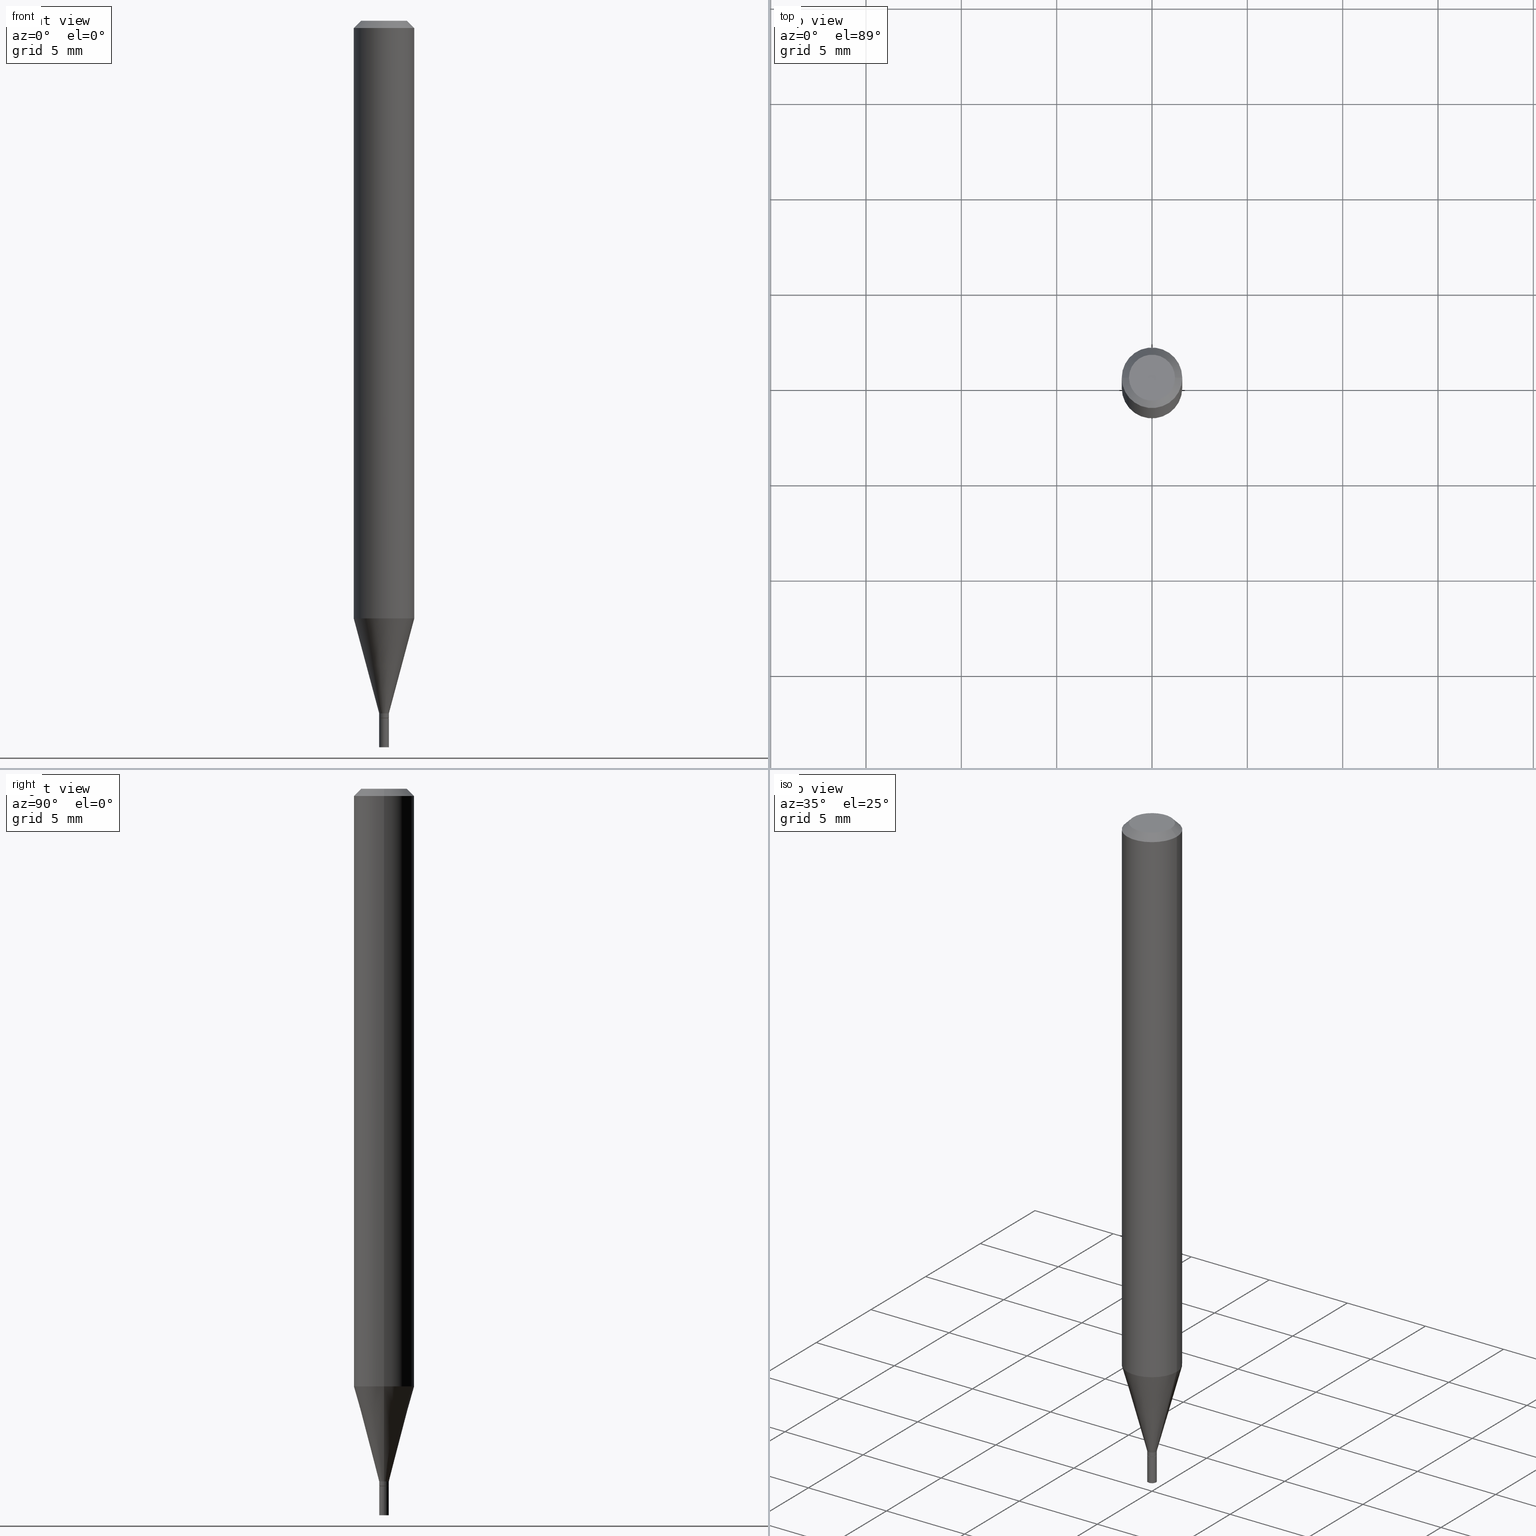
[diagram: canonical four-view strip — front | top / right | iso, engineering-drawing reading convention]
A machine part, canonical four-view strip (front | top / right | iso — engineering-drawing reading convention). The complete STEP part file that produces these views, byte-faithful:
ISO-10303-21;
HEADER;
FILE_DESCRIPTION (( 'STEP AP203' ),
    '1' );
FILE_NAME ('00826.STEP',
    '2024-03-19T22:33:39',
    ( '' ),
    ( '' ),
    'SwSTEP 2.0',
    'SolidWorks 2023',
    '' );
FILE_SCHEMA (( 'CONFIG_CONTROL_DESIGN' ));
ENDSEC;

DATA;
#1 = VERTEX_POINT ( 'NONE', #126 ) ;
#2 = ORIENTED_EDGE ( 'NONE', *, *, #125, .F. ) ;
#3 = CIRCLE ( 'NONE', #71, 0.009999999999999918676 ) ;
#4 = ORIENTED_EDGE ( 'NONE', *, *, #332, .T. ) ;
#5 = VERTEX_POINT ( 'NONE', #404 ) ;
#6 = CARTESIAN_POINT ( 'NONE',  ( 0.06250000000000000000, -4.364351673553916694E-16, 3.047610484872459871E-30 ) ) ;
#7 = ADVANCED_FACE ( 'NONE', ( #41 ), #15, .T. ) ;
#8 = EDGE_LOOP ( 'NONE', ( #123, #440 ) ) ;
#9 = CLOSED_SHELL ( 'NONE', ( #226, #133, #284, #25, #170, #396, #317, #293, #145, #108, #389, #69 ) ) ;
#10 = PRODUCT ( '00826', '00826', '', ( #357 ) ) ;
#11 = AXIS2_PLACEMENT_3D ( 'NONE', #422, #213, #353 ) ;
#12 = LINE ( 'NONE', #6, #167 ) ;
#13 = DIRECTION ( 'NONE',  ( -2.445468806185136597E-29, 3.491481338843145583E-15, 1.000000000000000000 ) ) ;
#14 = FACE_OUTER_BOUND ( 'NONE', #295, .T. ) ;
#15 = CYLINDRICAL_SURFACE ( 'NONE', #283, 0.01000000000000000021 ) ;
#16 = DIRECTION ( 'NONE',  ( -2.445468806185136597E-29, 3.491481338843145583E-15, 1.000000000000000000 ) ) ;
#17 = CIRCLE ( 'NONE', #337, 0.06250000000000000000 ) ;
#18 = VECTOR ( 'NONE', #376, 39.37007874015748143 ) ;
#19 = CALENDAR_DATE ( 2024, 19, 3 ) ;
#20 = CARTESIAN_POINT ( 'NONE',  ( 0.06250000000000000000, -4.888073874380388472E-16, -0.01499999999999999944 ) ) ;
#21 = CC_DESIGN_PERSON_AND_ORGANIZATION_ASSIGNMENT ( #127, #429, ( #398 ) ) ;
#22 = CIRCLE ( 'NONE', #223, 0.06250000000000000000 ) ;
#23 = CONICAL_SURFACE ( 'NONE', #304, 0.009999999999999918676, 0.2617993877991502405 ) ;
#24 = DIRECTION ( 'NONE',  ( 1.000000000000000000, -6.982962677686265922E-15, 4.876176775795935793E-29 ) ) ;
#25 = ADVANCED_FACE ( 'NONE', ( #345 ), #448, .T. ) ;
#26 = PERSON_AND_ORGANIZATION ( #276, #96 ) ;
#27 = DIRECTION ( 'NONE',  ( 1.000000000000000000, -6.982962677686292743E-15, 0.000000000000000000 ) ) ;
#28 = CARTESIAN_POINT ( 'NONE',  ( 3.521475080906597305E-29, -5.027733127934130649E-15, -1.440000000000000169 ) ) ;
#29 = DIRECTION ( 'NONE',  ( 2.438088387897960049E-29, -3.491481338843145188E-15, -1.000000000000000000 ) ) ;
#30 = APPROVAL_ROLE ( '' ) ;
#31 = VERTEX_POINT ( 'NONE', #442 ) ;
#32 = AXIS2_PLACEMENT_3D ( 'NONE', #55, #212, #136 ) ;
#33 = APPROVAL_STATUS ( 'not_yet_approved' ) ;
#34 = CIRCLE ( 'NONE', #232, 0.06250000000000000000 ) ;
#35 =( GEOMETRIC_REPRESENTATION_CONTEXT ( 3 ) GLOBAL_UNCERTAINTY_ASSIGNED_CONTEXT ( ( #225 ) ) GLOBAL_UNIT_ASSIGNED_CONTEXT ( ( #175, #247, #425 ) ) REPRESENTATION_CONTEXT ( 'NONE', 'WORKASPACE' ) );
#36 = EDGE_CURVE ( 'NONE', #443, #68, #17, .T. ) ;
#37 = ORIENTED_EDGE ( 'NONE', *, *, #364, .F. ) ;
#38 = CARTESIAN_POINT ( 'NONE',  ( 3.668203209277705088E-31, -5.237222008264718399E-17, -0.01499999999999999944 ) ) ;
#39 = DIRECTION ( 'NONE',  ( 2.445468806185136597E-29, -3.491481338843145583E-15, -1.000000000000000000 ) ) ;
#40 = EDGE_CURVE ( 'NONE', #45, #1, #378, .T. ) ;
#41 = FACE_OUTER_BOUND ( 'NONE', #374, .T. ) ;
#42 = VECTOR ( 'NONE', #413, 39.37007874015748143 ) ;
#43 = PRODUCT_DEFINITION_SHAPE ( 'NONE', 'NONE',  #398 ) ;
#44 = LOCAL_TIME ( 18, 33, 39.00000000000000000, #111 ) ;
#45 = VERTEX_POINT ( 'NONE', #49 ) ;
#46 = CARTESIAN_POINT ( 'NONE',  ( 3.017873166611840083E-29, -4.308723062658035041E-15, -1.234067332602634348 ) ) ;
#47 = CARTESIAN_POINT ( 'NONE',  ( 3.668203209277705088E-31, -5.237222008264718399E-17, -0.01499999999999999944 ) ) ;
#48 = CARTESIAN_POINT ( 'NONE',  ( -0.01000000000000000021, 7.105427357601002007E-17, -4.918935090254906272E-31 ) ) ;
#49 = CARTESIAN_POINT ( 'NONE',  ( 0.009999999999999918676, -5.062647941322559931E-15, -1.429999999999999938 ) ) ;
#50 = DIRECTION ( 'NONE',  ( -2.445468806185136597E-29, 3.491481338843145583E-15, 1.000000000000000000 ) ) ;
#51 = CIRCLE ( 'NONE', #152, 0.009999999999999923880 ) ;
#52 = APPROVAL_PERSON_ORGANIZATION ( #26, #74, #178 ) ;
#53 = DIRECTION ( 'NONE',  ( -2.438088387897960049E-29, 3.491481338843145188E-15, 1.000000000000000000 ) ) ;
#54 = CYLINDRICAL_SURFACE ( 'NONE', #202, 0.01000000000000000021 ) ;
#55 = CARTESIAN_POINT ( 'NONE',  ( 1.124489007074299301E-44, -1.605472281635369412E-30, -4.598255370218649310E-16 ) ) ;
#56 = DIRECTION ( 'NONE',  ( -2.445468806185136597E-29, 3.491481338843145583E-15, 1.000000000000000000 ) ) ;
#57 =( LENGTH_UNIT ( ) NAMED_UNIT ( * ) SI_UNIT ( $, .METRE. ) );
#58 = CARTESIAN_POINT ( 'NONE',  ( 0.009999999999999920411, -6.982962677686211490E-17, 4.876176775795897432E-31 ) ) ;
#59 = EDGE_CURVE ( 'NONE', #120, #31, #51, .T. ) ;
#60 = AXIS2_PLACEMENT_3D ( 'NONE', #65, #179, #358 ) ;
#61 = DIRECTION ( 'NONE',  ( 1.000000000000000000, -6.982962677686292743E-15, 0.000000000000000000 ) ) ;
#62 = DIRECTION ( 'NONE',  ( 2.438088387897960049E-29, -3.491481338843145188E-15, -1.000000000000000000 ) ) ;
#63 = CC_DESIGN_DATE_AND_TIME_ASSIGNMENT ( #255, #263, ( #260 ) ) ;
#64 = COORDINATED_UNIVERSAL_TIME_OFFSET ( 5, 0, .BEHIND. ) ;
#65 = CARTESIAN_POINT ( 'NONE',  ( 3.521475080906597305E-29, -5.027733127934130649E-15, -1.440000000000000169 ) ) ;
#66 = DESIGN_CONTEXT ( 'detailed design', #437, 'design' ) ;
#67 = APPROVAL_ROLE ( '' ) ;
#68 = VERTEX_POINT ( 'NONE', #20 ) ;
#69 = ADVANCED_FACE ( 'NONE', ( #171 ), #176, .T. ) ;
#70 = CONICAL_SURFACE ( 'NONE', #122, 0.009499999999999999764, 0.7853981633974728149 ) ;
#71 = AXIS2_PLACEMENT_3D ( 'NONE', #198, #444, #401 ) ;
#72 = PERSON_AND_ORGANIZATION ( #276, #96 ) ;
#73 = ORIENTED_EDGE ( 'NONE', *, *, #231, .T. ) ;
#74 = APPROVAL ( #239, 'UNSPECIFIED' ) ;
#75 = DATE_AND_TIME ( #300, #250 ) ;
#76 = ADVANCED_FACE ( 'NONE', ( #105 ), #217, .F. ) ;
#77 = CONICAL_SURFACE ( 'NONE', #296, 0.06250000000000000000, 0.7853981633974638221 ) ;
#78 = EDGE_LOOP ( 'NONE', ( #155, #2 ) ) ;
#79 = LINE ( 'NONE', #206, #420 ) ;
#80 = DIRECTION ( 'NONE',  ( -2.445468806185136877E-29, 3.491481338843145188E-15, 1.000000000000000000 ) ) ;
#81 = ORIENTED_EDGE ( 'NONE', *, *, #92, .F. ) ;
#82 = LINE ( 'NONE', #266, #18 ) ;
#83 = CC_DESIGN_PERSON_AND_ORGANIZATION_ASSIGNMENT ( #322, #456, ( #10 ) ) ;
#84 = CIRCLE ( 'NONE', #32, 0.04749999999999999362 ) ;
#85 = ORIENTED_EDGE ( 'NONE', *, *, #391, .T. ) ;
#86 = LINE ( 'NONE', #228, #421 ) ;
#87 = CARTESIAN_POINT ( 'NONE',  ( 3.497020392844745759E-29, -4.992818314545698211E-15, -1.429999999999999938 ) ) ;
#88 = ORIENTED_EDGE ( 'NONE', *, *, #36, .F. ) ;
#89 = ORIENTED_EDGE ( 'NONE', *, *, #464, .F. ) ;
#90 = CARTESIAN_POINT ( 'NONE',  ( 3.668203209277705088E-31, -5.237222008264718399E-17, -0.01499999999999999944 ) ) ;
#91 = CARTESIAN_POINT ( 'NONE',  ( 3.520252346503504503E-29, -5.025987387264709145E-15, -1.439500000000000224 ) ) ;
#92 = EDGE_CURVE ( 'NONE', #5, #265, #328, .T. ) ;
#93 = DIRECTION ( 'NONE',  ( 0.7071067811865647812, -2.468850131082438104E-15, 0.7071067811865301422 ) ) ;
#94 = CARTESIAN_POINT ( 'NONE',  ( 0.009999999999999918676, -5.062647941322559931E-15, -1.429999999999999938 ) ) ;
#95 = AXIS2_PLACEMENT_3D ( 'NONE', #38, #39, #230 ) ;
#96 = ORGANIZATION ( 'UNSPECIFIED', 'UNSPECIFIED', '' ) ;
#97 = LINE ( 'NONE', #245, #135 ) ;
#98 = DIRECTION ( 'NONE',  ( -2.445468806185136597E-29, 3.491481338843145583E-15, 1.000000000000000000 ) ) ;
#99 = EDGE_CURVE ( 'NONE', #416, #45, #297, .T. ) ;
#100 = CARTESIAN_POINT ( 'NONE',  ( 0.000000000000000000, 0.000000000000000000, 0.000000000000000000 ) ) ;
#101 = ORIENTED_EDGE ( 'NONE', *, *, #369, .T. ) ;
#102 = CARTESIAN_POINT ( 'NONE',  ( -0.06249999999999999306, -3.864633852807972425E-15, -1.234067332602634348 ) ) ;
#103 = AXIS2_PLACEMENT_3D ( 'NONE', #100, #139, #146 ) ;
#104 = CC_DESIGN_APPROVAL ( #74, ( #398 ) ) ;
#105 = FACE_OUTER_BOUND ( 'NONE', #8, .T. ) ;
#106 = PERSON_AND_ORGANIZATION_ROLE ( 'creator' ) ;
#107 = ORIENTED_EDGE ( 'NONE', *, *, #321, .T. ) ;
#108 = ADVANCED_FACE ( 'NONE', ( #355 ), #173, .F. ) ;
#109 = APPROVAL_DATE_TIME ( #75, #222 ) ;
#110 = VECTOR ( 'NONE', #450, 39.37007874015748143 ) ;
#111 = COORDINATED_UNIVERSAL_TIME_OFFSET ( 5, 0, .BEHIND. ) ;
#112 = ADVANCED_FACE ( 'NONE', ( #320 ), #253, .F. ) ;
#113 = PERSON_AND_ORGANIZATION ( #276, #96 ) ;
#114 = CARTESIAN_POINT ( 'NONE',  ( 0.009499999999999999764, -5.094071273372150151E-15, -1.440000000000000169 ) ) ;
#115 = CONICAL_SURFACE ( 'NONE', #224, 0.009499999999999999764, 0.7853981633974728149 ) ;
#116 = ORIENTED_EDGE ( 'NONE', *, *, #99, .F. ) ;
#117 = DIRECTION ( 'NONE',  ( 1.000000000000000000, -6.982962677686235945E-15, 0.000000000000000000 ) ) ;
#118 = ORIENTED_EDGE ( 'NONE', *, *, #432, .F. ) ;
#119 = CARTESIAN_POINT ( 'NONE',  ( 3.668203209277704895E-29, -5.237222008264718177E-15, -1.500000000000000222 ) ) ;
#120 = VERTEX_POINT ( 'NONE', #424 ) ;
#121 = DIRECTION ( 'NONE',  ( 1.000000000000000000, -6.982962677686266711E-15, 0.000000000000000000 ) ) ;
#122 = AXIS2_PLACEMENT_3D ( 'NONE', #28, #326, #455 ) ;
#123 = ORIENTED_EDGE ( 'NONE', *, *, #92, .T. ) ;
#124 = LINE ( 'NONE', #344, #42 ) ;
#125 = EDGE_CURVE ( 'NONE', #336, #343, #174, .T. ) ;
#126 = CARTESIAN_POINT ( 'NONE',  ( 0.06249999999999999306, -4.745158230013426710E-15, -1.234067332602634348 ) ) ;
#127 = PERSON_AND_ORGANIZATION ( #276, #96 ) ;
#128 = FACE_OUTER_BOUND ( 'NONE', #405, .T. ) ;
#129 = LINE ( 'NONE', #385, #434 ) ;
#130 = LINE ( 'NONE', #58, #399 ) ;
#131 = DIRECTION ( 'NONE',  ( 1.000000000000000000, -6.982962677686235945E-15, 0.000000000000000000 ) ) ;
#132 = ORIENTED_EDGE ( 'NONE', *, *, #269, .F. ) ;
#133 = ADVANCED_FACE ( 'NONE', ( #318 ), #70, .T. ) ;
#134 = VECTOR ( 'NONE', #415, 39.37007874015748143 ) ;
#135 = VECTOR ( 'NONE', #325, 39.37007874015748854 ) ;
#136 = DIRECTION ( 'NONE',  ( 1.000000000000000000, -6.982962677686267499E-15, 4.852736867747366768E-29 ) ) ;
#137 = CARTESIAN_POINT ( 'NONE',  ( 3.584916967085606921E-29, -5.356492647442320375E-15, -1.500000000000000222 ) ) ;
#138 = EDGE_LOOP ( 'NONE', ( #402, #101, #107, #88 ) ) ;
#139 = DIRECTION ( 'NONE',  ( -2.445468806185136597E-29, 3.491481338843145583E-15, 1.000000000000000000 ) ) ;
#140 = LINE ( 'NONE', #457, #110 ) ;
#141 = DIRECTION ( 'NONE',  ( 1.000000000000000000, -6.982962677686265922E-15, 4.876176775795935793E-29 ) ) ;
#142 = AXIS2_PLACEMENT_3D ( 'NONE', #290, #56, #257 ) ;
#143 = ORIENTED_EDGE ( 'NONE', *, *, #281, .T. ) ;
#144 = CIRCLE ( 'NONE', #339, 0.06250000000000000000 ) ;
#145 = ADVANCED_FACE ( 'NONE', ( #285 ), #219, .F. ) ;
#146 = DIRECTION ( 'NONE',  ( 1.000000000000000000, -6.982962677686266711E-15, 4.876176775795936353E-29 ) ) ;
#147 = EDGE_LOOP ( 'NONE', ( #73, #397 ) ) ;
#148 = CC_DESIGN_PERSON_AND_ORGANIZATION_ASSIGNMENT ( #465, #435, ( #188 ) ) ;
#149 = SECURITY_CLASSIFICATION_LEVEL ( 'unclassified' ) ;
#150 = ORIENTED_EDGE ( 'NONE', *, *, #248, .F. ) ;
#151 = EDGE_LOOP ( 'NONE', ( #4, #256, #278, #346 ) ) ;
#152 = AXIS2_PLACEMENT_3D ( 'NONE', #91, #242, #209 ) ;
#153 = CC_DESIGN_SECURITY_CLASSIFICATION ( #260, ( #188 ) ) ;
#154 = APPROVAL_PERSON_ORGANIZATION ( #261, #436, #67 ) ;
#155 = ORIENTED_EDGE ( 'NONE', *, *, #218, .F. ) ;
#156 = CIRCLE ( 'NONE', #249, 0.04749999999999999362 ) ;
#157 = VECTOR ( 'NONE', #210, 39.37007874015748143 ) ;
#158 = EDGE_LOOP ( 'NONE', ( #132, #361, #143, #394 ) ) ;
#159 = ORIENTED_EDGE ( 'NONE', *, *, #464, .T. ) ;
#160 = DIRECTION ( 'NONE',  ( -2.445468806185136597E-29, 3.491481338843145583E-15, 1.000000000000000000 ) ) ;
#161 = ORIENTED_EDGE ( 'NONE', *, *, #306, .F. ) ;
#162 = DIRECTION ( 'NONE',  ( -0.7071067811865584529, 2.468850131082371445E-15, -0.7071067811865365815 ) ) ;
#163 = CARTESIAN_POINT ( 'NONE',  ( 0.000000000000000000, 0.000000000000000000, 0.000000000000000000 ) ) ;
#164 = EDGE_LOOP ( 'NONE', ( #196, #445, #159, #359 ) ) ;
#165 = EDGE_CURVE ( 'NONE', #31, #120, #387, .T. ) ;
#166 = DIRECTION ( 'NONE',  ( 2.445468806185136597E-29, -3.491481338843145583E-15, -1.000000000000000000 ) ) ;
#167 = VECTOR ( 'NONE', #301, 39.37007874015748143 ) ;
#168 = CC_DESIGN_APPROVAL ( #436, ( #260 ) ) ;
#169 = CARTESIAN_POINT ( 'NONE',  ( -0.009999999999999918676, -4.393198946888830277E-15, -1.429999999999999938 ) ) ;
#170 = ADVANCED_FACE ( 'NONE', ( #392 ), #349, .T. ) ;
#171 = FACE_OUTER_BOUND ( 'NONE', #203, .T. ) ;
#172 = DIRECTION ( 'NONE',  ( -2.445468806185136597E-29, 3.491481338843145583E-15, 1.000000000000000000 ) ) ;
#173 = PLANE ( 'NONE',  #426 ) ;
#174 = CIRCLE ( 'NONE', #60, 0.009499999999999999764 ) ;
#175 =( CONVERSION_BASED_UNIT ( 'INCH', #419 ) LENGTH_UNIT ( ) NAMED_UNIT ( #215 ) );
#176 = CYLINDRICAL_SURFACE ( 'NONE', #103, 0.009999999999999920411 ) ;
#177 = ORIENTED_EDGE ( 'NONE', *, *, #382, .F. ) ;
#178 = APPROVAL_ROLE ( '' ) ;
#179 = DIRECTION ( 'NONE',  ( -2.445468806185136597E-29, 3.491481338843145583E-15, 1.000000000000000000 ) ) ;
#180 = MANIFOLD_SOLID_BREP ( 'Body-Move/Copy2[2]', #9 ) ;
#181 = CARTESIAN_POINT ( 'NONE',  ( 3.521475080906597305E-29, -5.027733127934130649E-15, -1.440000000000000169 ) ) ;
#182 = DIRECTION ( 'NONE',  ( -1.000000000000000000, 6.982962677686265922E-15, -4.876176775795935793E-29 ) ) ;
#183 = ORIENTED_EDGE ( 'NONE', *, *, #99, .T. ) ;
#184 = VERTEX_POINT ( 'NONE', #458 ) ;
#185 = AXIS2_PLACEMENT_3D ( 'NONE', #302, #190, #259 ) ;
#186 = APPROVAL_DATE_TIME ( #362, #436 ) ;
#187 = ORIENTED_EDGE ( 'NONE', *, *, #286, .T. ) ;
#188 = PRODUCT_DEFINITION_FORMATION_WITH_SPECIFIED_SOURCE ( 'ANY', '', #10, .NOT_KNOWN. ) ;
#189 = MANIFOLD_SOLID_BREP ( 'Body-Move/Copy2[1]', #393 ) ;
#190 = DIRECTION ( 'NONE',  ( -2.445468806185136597E-29, 3.491481338843145583E-15, 1.000000000000000000 ) ) ;
#191 = EDGE_CURVE ( 'NONE', #265, #5, #439, .T. ) ;
#192 = PERSON_AND_ORGANIZATION ( #276, #96 ) ;
#193 = ORIENTED_EDGE ( 'NONE', *, *, #281, .F. ) ;
#194 = CC_DESIGN_PERSON_AND_ORGANIZATION_ASSIGNMENT ( #113, #294, ( #260 ) ) ;
#195 = DATE_AND_TIME ( #366, #314 ) ;
#196 = ORIENTED_EDGE ( 'NONE', *, *, #391, .F. ) ;
#197 = CARTESIAN_POINT ( 'NONE',  ( -0.04749999999999999362, 3.578768372314203110E-16, -4.598255370218673962E-16 ) ) ;
#198 = CARTESIAN_POINT ( 'NONE',  ( 3.497020392844745759E-29, -4.992818314545698211E-15, -1.429999999999999938 ) ) ;
#199 = ORIENTED_EDGE ( 'NONE', *, *, #191, .F. ) ;
#200 = CARTESIAN_POINT ( 'NONE',  ( 3.017873166611840083E-29, -4.308723062658035041E-15, -1.234067332602634348 ) ) ;
#201 = AXIS2_PLACEMENT_3D ( 'NONE', #352, #62, #384 ) ;
#202 = AXIS2_PLACEMENT_3D ( 'NONE', #381, #172, #279 ) ;
#203 = EDGE_LOOP ( 'NONE', ( #244, #368, #315, #116 ) ) ;
#204 = CARTESIAN_POINT ( 'NONE',  ( 3.521475080906597305E-29, -5.027733127934130649E-15, -1.440000000000000169 ) ) ;
#205 = EDGE_CURVE ( 'NONE', #31, #45, #130, .T. ) ;
#206 = CARTESIAN_POINT ( 'NONE',  ( -0.06250000000000000000, 3.840629472727444916E-16, -0.01499999999999999944 ) ) ;
#207 = DIRECTION ( 'NONE',  ( -2.445468806185136597E-29, 3.491481338843145583E-15, 1.000000000000000000 ) ) ;
#208 = CARTESIAN_POINT ( 'NONE',  ( -0.009999999999999918676, -4.921764040969688918E-15, -1.429999999999999938 ) ) ;
#209 = DIRECTION ( 'NONE',  ( 1.000000000000000000, -6.982962677686289588E-15, 0.000000000000000000 ) ) ;
#210 = DIRECTION ( 'NONE',  ( -0.2588190451025215166, 5.211531920934551042E-15, 0.9659258262890679791 ) ) ;
#211 = DIRECTION ( 'NONE',  ( -2.445468806185136597E-29, 3.491481338843145583E-15, 1.000000000000000000 ) ) ;
#212 = DIRECTION ( 'NONE',  ( -2.445468806185136597E-29, 3.491481338843145583E-15, 1.000000000000000000 ) ) ;
#213 = DIRECTION ( 'NONE',  ( 0.000000000000000000, 0.000000000000000000, 1.000000000000000000 ) ) ;
#214 = AXIS2_PLACEMENT_3D ( 'NONE', #227, #50, #447 ) ;
#215 = DIMENSIONAL_EXPONENTS ( 1.000000000000000000, 0.000000000000000000, 0.000000000000000000, 0.000000000000000000, 0.000000000000000000, 0.000000000000000000, 0.000000000000000000 ) ;
#216 = APPLICATION_PROTOCOL_DEFINITION ( 'international standard', 'config_control_design', 1994, #411 ) ;
#217 = PLANE ( 'NONE',  #201 ) ;
#218 = EDGE_CURVE ( 'NONE', #343, #336, #289, .T. ) ;
#219 = PLANE ( 'NONE',  #375 ) ;
#220 = CALENDAR_DATE ( 2024, 19, 3 ) ;
#221 = EDGE_LOOP ( 'NONE', ( #118, #183, #234, #309 ) ) ;
#222 = APPROVAL ( #33, 'UNSPECIFIED' ) ;
#223 = AXIS2_PLACEMENT_3D ( 'NONE', #200, #160, #310 ) ;
#224 = AXIS2_PLACEMENT_3D ( 'NONE', #204, #377, #264 ) ;
#225 = UNCERTAINTY_MEASURE_WITH_UNIT (LENGTH_MEASURE( 1.000000000000000082E-05 ), #175, 'distance_accuracy_value', 'NONE');
#226 = ADVANCED_FACE ( 'NONE', ( #128 ), #240, .T. ) ;
#227 = CARTESIAN_POINT ( 'NONE',  ( 3.668203209277704895E-29, -5.237222008264718177E-15, -1.500000000000000222 ) ) ;
#228 = CARTESIAN_POINT ( 'NONE',  ( 0.01000000000000000021, -6.982962677686265724E-17, 4.876176775795935968E-31 ) ) ;
#229 = ORIENTED_EDGE ( 'NONE', *, *, #258, .T. ) ;
#230 = DIRECTION ( 'NONE',  ( -1.000000000000000000, 6.982962677686266711E-15, 0.000000000000000000 ) ) ;
#231 = EDGE_CURVE ( 'NONE', #236, #184, #84, .T. ) ;
#232 = AXIS2_PLACEMENT_3D ( 'NONE', #90, #16, #121 ) ;
#233 = VERTEX_POINT ( 'NONE', #395 ) ;
#234 = ORIENTED_EDGE ( 'NONE', *, *, #40, .T. ) ;
#235 = FACE_OUTER_BOUND ( 'NONE', #164, .T. ) ;
#236 = VERTEX_POINT ( 'NONE', #197 ) ;
#237 = FACE_OUTER_BOUND ( 'NONE', #158, .T. ) ;
#238 = DIRECTION ( 'NONE',  ( -2.445468806185136597E-29, 3.491481338843145583E-15, 1.000000000000000000 ) ) ;
#239 = APPROVAL_STATUS ( 'not_yet_approved' ) ;
#240 = CYLINDRICAL_SURFACE ( 'NONE', #365, 0.009999999999999920411 ) ;
#241 = AXIS2_PLACEMENT_3D ( 'NONE', #181, #453, #327 ) ;
#242 = DIRECTION ( 'NONE',  ( -2.445468806185136597E-29, 3.491481338843145583E-15, 1.000000000000000000 ) ) ;
#243 = CARTESIAN_POINT ( 'NONE',  ( -0.06250000000000000000, -1.736458431520278641E-15, -0.01499999999999999944 ) ) ;
#244 = ORIENTED_EDGE ( 'NONE', *, *, #258, .F. ) ;
#245 = CARTESIAN_POINT ( 'NONE',  ( -0.009499999999999999764, -4.960231568036920677E-15, -1.440000000000000169 ) ) ;
#246 = DIRECTION ( 'NONE',  ( -2.445468806185136597E-29, 3.491481338843145583E-15, 1.000000000000000000 ) ) ;
#247 =( NAMED_UNIT ( * ) PLANE_ANGLE_UNIT ( ) SI_UNIT ( $, .RADIAN. ) );
#248 = EDGE_CURVE ( 'NONE', #233, #265, #270, .T. ) ;
#249 = AXIS2_PLACEMENT_3D ( 'NONE', #303, #334, #275 ) ;
#250 = LOCAL_TIME ( 18, 33, 39.00000000000000000, #64 ) ;
#251 = CARTESIAN_POINT ( 'NONE',  ( 0.01000000000000000021, -5.307051635041580686E-15, -1.500000000000000222 ) ) ;
#252 = DIRECTION ( 'NONE',  ( -2.445468806185136877E-29, 3.491481338843145188E-15, 1.000000000000000000 ) ) ;
#253 = PLANE ( 'NONE',  #452 ) ;
#254 = EDGE_CURVE ( 'NONE', #236, #443, #79, .T. ) ;
#255 = DATE_AND_TIME ( #298, #44 ) ;
#256 = ORIENTED_EDGE ( 'NONE', *, *, #432, .T. ) ;
#257 = DIRECTION ( 'NONE',  ( 1.000000000000000000, -6.982962677686292743E-15, 0.000000000000000000 ) ) ;
#258 = EDGE_CURVE ( 'NONE', #120, #416, #124, .T. ) ;
#259 = DIRECTION ( 'NONE',  ( 1.000000000000000000, -6.982962677686289588E-15, 0.000000000000000000 ) ) ;
#260 = SECURITY_CLASSIFICATION ( '', '', #149 ) ;
#261 = PERSON_AND_ORGANIZATION ( #276, #96 ) ;
#262 = EDGE_LOOP ( 'NONE', ( #407, #267, #81, #177 ) ) ;
#263 = DATE_TIME_ROLE ( 'classification_date' ) ;
#264 = DIRECTION ( 'NONE',  ( 1.000000000000000000, -6.982962677686281699E-15, 0.000000000000000000 ) ) ;
#265 = VERTEX_POINT ( 'NONE', #273 ) ;
#266 = CARTESIAN_POINT ( 'NONE',  ( 0.06250000000000000000, -4.811533449433679005E-16, -0.01499999999999999944 ) ) ;
#267 = ORIENTED_EDGE ( 'NONE', *, *, #248, .T. ) ;
#268 = ORIENTED_EDGE ( 'NONE', *, *, #382, .T. ) ;
#269 = EDGE_CURVE ( 'NONE', #184, #236, #156, .T. ) ;
#270 = LINE ( 'NONE', #48, #446 ) ;
#271 = DIRECTION ( 'NONE',  ( -2.445468806185136597E-29, 3.491481338843145583E-15, 1.000000000000000000 ) ) ;
#272 = ORIENTED_EDGE ( 'NONE', *, *, #205, .F. ) ;
#273 = CARTESIAN_POINT ( 'NONE',  ( -0.01000000000000000021, -5.061423294523413937E-15, -1.440000000000000169 ) ) ;
#274 = ORIENTED_EDGE ( 'NONE', *, *, #347, .T. ) ;
#275 = DIRECTION ( 'NONE',  ( 1.000000000000000000, -6.982962677686267499E-15, 4.852736867747366768E-29 ) ) ;
#276 = PERSON ( 'UNSPECIFIED', 'UNSPECIFIED', 'UNSPECIFIED', ('UNSPECIFIED'), ('UNSPECIFIED'), ('UNSPECIFIED') ) ;
#277 = DIRECTION ( 'NONE',  ( 1.000000000000000000, -6.982962677686265922E-15, 4.876176775795935793E-29 ) ) ;
#278 = ORIENTED_EDGE ( 'NONE', *, *, #286, .F. ) ;
#279 = DIRECTION ( 'NONE',  ( 1.000000000000000000, -6.982962677686265922E-15, 4.876176775795935793E-29 ) ) ;
#280 = CARTESIAN_POINT ( 'NONE',  ( 0.000000000000000000, 0.000000000000000000, 0.000000000000000000 ) ) ;
#281 = EDGE_CURVE ( 'NONE', #68, #443, #34, .T. ) ;
#282 = CARTESIAN_POINT ( 'NONE',  ( 0.000000000000000000, 0.000000000000000000, 0.000000000000000000 ) ) ;
#283 = AXIS2_PLACEMENT_3D ( 'NONE', #280, #271, #277 ) ;
#284 = ADVANCED_FACE ( 'NONE', ( #237 ), #77, .T. ) ;
#285 = FACE_OUTER_BOUND ( 'NONE', #147, .T. ) ;
#286 = EDGE_CURVE ( 'NONE', #1, #430, #22, .T. ) ;
#287 = CARTESIAN_POINT ( 'NONE',  ( 3.521475080906597305E-29, -5.027733127934130649E-15, -1.440000000000000169 ) ) ;
#288 = DIRECTION ( 'NONE',  ( 1.000000000000000000, -6.982962677686235945E-15, 0.000000000000000000 ) ) ;
#289 = CIRCLE ( 'NONE', #241, 0.009499999999999999764 ) ;
#290 = CARTESIAN_POINT ( 'NONE',  ( 3.497020392844745759E-29, -4.992818314545698211E-15, -1.429999999999999938 ) ) ;
#291 = DATE_TIME_ROLE ( 'creation_date' ) ;
#292 = ORIENTED_EDGE ( 'NONE', *, *, #36, .T. ) ;
#293 = ADVANCED_FACE ( 'NONE', ( #14 ), #409, .T. ) ;
#294 = PERSON_AND_ORGANIZATION_ROLE ( 'classification_officer' ) ;
#295 = EDGE_LOOP ( 'NONE', ( #37, #341, #363, #292 ) ) ;
#296 = AXIS2_PLACEMENT_3D ( 'NONE', #379, #166, #312 ) ;
#297 = CIRCLE ( 'NONE', #142, 0.009999999999999918676 ) ;
#298 = CALENDAR_DATE ( 2024, 19, 3 ) ;
#299 = APPROVAL_PERSON_ORGANIZATION ( #72, #222, #30 ) ;
#300 = CALENDAR_DATE ( 2024, 19, 3 ) ;
#301 = DIRECTION ( 'NONE',  ( -2.445468806185136877E-29, 3.491481338843145188E-15, 1.000000000000000000 ) ) ;
#302 = CARTESIAN_POINT ( 'NONE',  ( 3.520252346503504503E-29, -5.025987387264709145E-15, -1.439500000000000224 ) ) ;
#303 = CARTESIAN_POINT ( 'NONE',  ( 1.124489007074299301E-44, -1.605472281635369412E-30, -4.598255370218649310E-16 ) ) ;
#304 = AXIS2_PLACEMENT_3D ( 'NONE', #386, #451, #61 ) ;
#305 = ORIENTED_EDGE ( 'NONE', *, *, #332, .F. ) ;
#306 = EDGE_CURVE ( 'NONE', #462, #233, #354, .T. ) ;
#307 = EDGE_LOOP ( 'NONE', ( #187, #380, #193, #408 ) ) ;
#308 = CYLINDRICAL_SURFACE ( 'NONE', #313, 0.06250000000000000000 ) ;
#309 = ORIENTED_EDGE ( 'NONE', *, *, #369, .F. ) ;
#310 = DIRECTION ( 'NONE',  ( 1.000000000000000000, -6.982962677686262766E-15, 0.000000000000000000 ) ) ;
#311 = DIRECTION ( 'NONE',  ( 1.000000000000000000, -6.982962677686266711E-15, 0.000000000000000000 ) ) ;
#312 = DIRECTION ( 'NONE',  ( -1.000000000000000000, 6.982962677686266711E-15, 0.000000000000000000 ) ) ;
#313 = AXIS2_PLACEMENT_3D ( 'NONE', #338, #406, #441 ) ;
#314 = LOCAL_TIME ( 18, 33, 39.00000000000000000, #330 ) ;
#315 = ORIENTED_EDGE ( 'NONE', *, *, #205, .T. ) ;
#316 = DATE_AND_TIME ( #19, #454 ) ;
#317 = ADVANCED_FACE ( 'NONE', ( #373 ), #308, .T. ) ;
#318 = FACE_OUTER_BOUND ( 'NONE', #412, .T. ) ;
#319 = AXIS2_PLACEMENT_3D ( 'NONE', #87, #238, #27 ) ;
#320 = FACE_OUTER_BOUND ( 'NONE', #333, .T. ) ;
#321 = EDGE_CURVE ( 'NONE', #1, #68, #12, .T. ) ;
#322 = PERSON_AND_ORGANIZATION ( #276, #96 ) ;
#323 = CARTESIAN_POINT ( 'NONE',  ( 3.521475080906597305E-29, -5.027733127934130649E-15, -1.440000000000000169 ) ) ;
#324 = CARTESIAN_POINT ( 'NONE',  ( 3.521475080906597305E-29, -5.027733127934130649E-15, -1.440000000000000169 ) ) ;
#325 = DIRECTION ( 'NONE',  ( -0.7071067811865647812, 7.493145998870415691E-15, 0.7071067811865301422 ) ) ;
#326 = DIRECTION ( 'NONE',  ( -2.445468806185136597E-29, 3.491481338843145583E-15, 1.000000000000000000 ) ) ;
#327 = DIRECTION ( 'NONE',  ( 1.000000000000000000, -6.982962677686281699E-15, 0.000000000000000000 ) ) ;
#328 = CIRCLE ( 'NONE', #460, 0.01000000000000000021 ) ;
#329 = CIRCLE ( 'NONE', #428, 0.01000000000000000021 ) ;
#330 = COORDINATED_UNIVERSAL_TIME_OFFSET ( 5, 0, .BEHIND. ) ;
#331 = ORIENTED_EDGE ( 'NONE', *, *, #218, .T. ) ;
#332 = EDGE_CURVE ( 'NONE', #45, #416, #3, .T. ) ;
#333 = EDGE_LOOP ( 'NONE', ( #161, #367 ) ) ;
#334 = DIRECTION ( 'NONE',  ( -2.445468806185136597E-29, 3.491481338843145583E-15, 1.000000000000000000 ) ) ;
#335 = DIRECTION ( 'NONE',  ( -2.445468806185136597E-29, 3.491481338843145583E-15, 1.000000000000000000 ) ) ;
#336 = VERTEX_POINT ( 'NONE', #438 ) ;
#337 = AXIS2_PLACEMENT_3D ( 'NONE', #47, #13, #311 ) ;
#338 = CARTESIAN_POINT ( 'NONE',  ( 0.000000000000000000, 0.000000000000000000, 0.000000000000000000 ) ) ;
#339 = AXIS2_PLACEMENT_3D ( 'NONE', #46, #410, #403 ) ;
#340 = DIRECTION ( 'NONE',  ( 1.000000000000000000, -6.982962677686266711E-15, 4.876176775795935793E-29 ) ) ;
#341 = ORIENTED_EDGE ( 'NONE', *, *, #231, .F. ) ;
#342 = DIRECTION ( 'NONE',  ( -2.445468806185136877E-29, 3.491481338843145188E-15, 1.000000000000000000 ) ) ;
#343 = VERTEX_POINT ( 'NONE', #114 ) ;
#344 = CARTESIAN_POINT ( 'NONE',  ( -0.009999999999999920411, 7.105427357600945307E-17, -4.918935090254867737E-31 ) ) ;
#345 = FACE_OUTER_BOUND ( 'NONE', #307, .T. ) ;
#346 = ORIENTED_EDGE ( 'NONE', *, *, #40, .F. ) ;
#347 = EDGE_CURVE ( 'NONE', #233, #462, #329, .T. ) ;
#348 = FACE_OUTER_BOUND ( 'NONE', #221, .T. ) ;
#349 = CONICAL_SURFACE ( 'NONE', #319, 0.009999999999999918676, 0.2617993877991502405 ) ;
#350 = LINE ( 'NONE', #208, #157 ) ;
#351 = FACE_OUTER_BOUND ( 'NONE', #262, .T. ) ;
#352 = CARTESIAN_POINT ( 'NONE',  ( 6.982962677689787249E-17, 0.009999999999994971245, -1.440000000000000169 ) ) ;
#353 = DIRECTION ( 'NONE',  ( 1.000000000000000000, 0.000000000000000000, 0.000000000000000000 ) ) ;
#354 = CIRCLE ( 'NONE', #214, 0.01000000000000000021 ) ;
#355 = FACE_OUTER_BOUND ( 'NONE', #78, .T. ) ;
#356 = PRODUCT_RELATED_PRODUCT_CATEGORY ( 'detail', '', ( #10 ) ) ;
#357 = MECHANICAL_CONTEXT ( 'NONE', #411, 'mechanical' ) ;
#358 = DIRECTION ( 'NONE',  ( 1.000000000000000000, -6.982962677686281699E-15, 0.000000000000000000 ) ) ;
#359 = ORIENTED_EDGE ( 'NONE', *, *, #59, .F. ) ;
#360 = CARTESIAN_POINT ( 'NONE',  ( 3.316907271900976096E-16, 0.04749999999999999362, -3.957581321059819112E-16 ) ) ;
#361 = ORIENTED_EDGE ( 'NONE', *, *, #364, .T. ) ;
#362 = DATE_AND_TIME ( #220, #372 ) ;
#363 = ORIENTED_EDGE ( 'NONE', *, *, #254, .T. ) ;
#364 = EDGE_CURVE ( 'NONE', #184, #68, #82, .T. ) ;
#365 = AXIS2_PLACEMENT_3D ( 'NONE', #282, #98, #383 ) ;
#366 = CALENDAR_DATE ( 2024, 19, 3 ) ;
#367 = ORIENTED_EDGE ( 'NONE', *, *, #347, .F. ) ;
#368 = ORIENTED_EDGE ( 'NONE', *, *, #59, .T. ) ;
#369 = EDGE_CURVE ( 'NONE', #430, #1, #144, .T. ) ;
#370 = COORDINATED_UNIVERSAL_TIME_OFFSET ( 5, 0, .BEHIND. ) ;
#371 = AXIS2_PLACEMENT_3D ( 'NONE', #163, #207, #340 ) ;
#372 = LOCAL_TIME ( 18, 33, 39.00000000000000000, #370 ) ;
#373 = FACE_OUTER_BOUND ( 'NONE', #138, .T. ) ;
#374 = EDGE_LOOP ( 'NONE', ( #150, #274, #268, #199 ) ) ;
#375 = AXIS2_PLACEMENT_3D ( 'NONE', #360, #29, #182 ) ;
#376 = DIRECTION ( 'NONE',  ( 0.7071067811865584529, -7.319954787623292333E-15, -0.7071067811865365815 ) ) ;
#377 = DIRECTION ( 'NONE',  ( -2.445468806185136597E-29, 3.491481338843145583E-15, 1.000000000000000000 ) ) ;
#378 = LINE ( 'NONE', #94, #134 ) ;
#379 = CARTESIAN_POINT ( 'NONE',  ( 3.668203209277705088E-31, -5.237222008264718399E-17, -0.01499999999999999944 ) ) ;
#380 = ORIENTED_EDGE ( 'NONE', *, *, #427, .T. ) ;
#381 = CARTESIAN_POINT ( 'NONE',  ( 0.000000000000000000, 0.000000000000000000, 0.000000000000000000 ) ) ;
#382 = EDGE_CURVE ( 'NONE', #462, #5, #86, .T. ) ;
#383 = DIRECTION ( 'NONE',  ( 1.000000000000000000, -6.982962677686266711E-15, 4.876176775795936353E-29 ) ) ;
#384 = DIRECTION ( 'NONE',  ( -1.000000000000000000, 6.982962677686265922E-15, -4.876176775795935793E-29 ) ) ;
#385 = CARTESIAN_POINT ( 'NONE',  ( 0.009499999999999999764, -5.094071273372150151E-15, -1.440000000000000169 ) ) ;
#386 = CARTESIAN_POINT ( 'NONE',  ( 3.497020392844745759E-29, -4.992818314545698211E-15, -1.429999999999999938 ) ) ;
#387 = CIRCLE ( 'NONE', #185, 0.009999999999999923880 ) ;
#388 = COORDINATED_UNIVERSAL_TIME_OFFSET ( 5, 0, .BEHIND. ) ;
#389 = ADVANCED_FACE ( 'NONE', ( #235 ), #115, .T. ) ;
#390 = APPROVAL_STATUS ( 'not_yet_approved' ) ;
#391 = EDGE_CURVE ( 'NONE', #336, #120, #97, .T. ) ;
#392 = FACE_OUTER_BOUND ( 'NONE', #151, .T. ) ;
#393 = CLOSED_SHELL ( 'NONE', ( #418, #112, #7, #76 ) ) ;
#394 = ORIENTED_EDGE ( 'NONE', *, *, #254, .F. ) ;
#395 = CARTESIAN_POINT ( 'NONE',  ( -0.01000000000000000021, -5.061423294523413937E-15, -1.500000000000000222 ) ) ;
#396 = ADVANCED_FACE ( 'NONE', ( #348 ), #23, .T. ) ;
#397 = ORIENTED_EDGE ( 'NONE', *, *, #269, .T. ) ;
#398 = PRODUCT_DEFINITION ( 'UNKNOWN', '', #188, #66 ) ;
#399 = VECTOR ( 'NONE', #252, 39.37007874015748143 ) ;
#400 = CC_DESIGN_APPROVAL ( #222, ( #188 ) ) ;
#401 = DIRECTION ( 'NONE',  ( 1.000000000000000000, -6.982962677686292743E-15, 0.000000000000000000 ) ) ;
#402 = ORIENTED_EDGE ( 'NONE', *, *, #427, .F. ) ;
#403 = DIRECTION ( 'NONE',  ( 1.000000000000000000, -6.982962677686262766E-15, 0.000000000000000000 ) ) ;
#404 = CARTESIAN_POINT ( 'NONE',  ( 0.01000000000000000021, -5.097562754710993158E-15, -1.440000000000000169 ) ) ;
#405 = EDGE_LOOP ( 'NONE', ( #423, #229, #305, #272 ) ) ;
#406 = DIRECTION ( 'NONE',  ( -2.445468806185136597E-29, 3.491481338843145583E-15, 1.000000000000000000 ) ) ;
#407 = ORIENTED_EDGE ( 'NONE', *, *, #306, .T. ) ;
#408 = ORIENTED_EDGE ( 'NONE', *, *, #321, .F. ) ;
#409 = CONICAL_SURFACE ( 'NONE', #95, 0.06250000000000000000, 0.7853981633974638221 ) ;
#410 = DIRECTION ( 'NONE',  ( -2.445468806185136597E-29, 3.491481338843145583E-15, 1.000000000000000000 ) ) ;
#411 = APPLICATION_CONTEXT ( 'configuration controlled 3d designs of mechanical parts and assemblies' ) ;
#412 = EDGE_LOOP ( 'NONE', ( #331, #85, #466, #89 ) ) ;
#413 = DIRECTION ( 'NONE',  ( -2.445468806185136877E-29, 3.491481338843145188E-15, 1.000000000000000000 ) ) ;
#414 = CC_DESIGN_DATE_AND_TIME_ASSIGNMENT ( #195, #291, ( #398 ) ) ;
#415 = DIRECTION ( 'NONE',  ( 0.2588190451025215166, 1.565188264969620784E-15, 0.9659258262890679791 ) ) ;
#416 = VERTEX_POINT ( 'NONE', #169 ) ;
#417 = APPLICATION_PROTOCOL_DEFINITION ( 'international standard', 'config_control_design', 1994, #437 ) ;
#418 = ADVANCED_FACE ( 'NONE', ( #351 ), #54, .T. ) ;
#419 = LENGTH_MEASURE_WITH_UNIT ( LENGTH_MEASURE( 0.02539999999999999897 ), #57 );
#420 = VECTOR ( 'NONE', #162, 39.37007874015748143 ) ;
#421 = VECTOR ( 'NONE', #342, 39.37007874015748143 ) ;
#422 = CARTESIAN_POINT ( 'NONE',  ( 0.000000000000000000, 0.000000000000000000, 0.000000000000000000 ) ) ;
#423 = ORIENTED_EDGE ( 'NONE', *, *, #165, .T. ) ;
#424 = CARTESIAN_POINT ( 'NONE',  ( -0.009999999999999923880, -4.954933113688699852E-15, -1.439500000000000224 ) ) ;
#425 =( NAMED_UNIT ( * ) SI_UNIT ( $, .STERADIAN. ) SOLID_ANGLE_UNIT ( ) );
#426 = AXIS2_PLACEMENT_3D ( 'NONE', #287, #53, #24 ) ;
#427 = EDGE_CURVE ( 'NONE', #430, #443, #140, .T. ) ;
#428 = AXIS2_PLACEMENT_3D ( 'NONE', #119, #335, #117 ) ;
#429 = PERSON_AND_ORGANIZATION_ROLE ( 'creator' ) ;
#430 = VERTEX_POINT ( 'NONE', #102 ) ;
#431 = CC_DESIGN_PERSON_AND_ORGANIZATION_ASSIGNMENT ( #192, #106, ( #188 ) ) ;
#432 = EDGE_CURVE ( 'NONE', #416, #430, #350, .T. ) ;
#433 = AXIS2_PLACEMENT_3D ( 'NONE', #323, #211, #288 ) ;
#434 = VECTOR ( 'NONE', #93, 39.37007874015748854 ) ;
#435 = PERSON_AND_ORGANIZATION_ROLE ( 'design_supplier' ) ;
#436 = APPROVAL ( #390, 'UNSPECIFIED' ) ;
#437 = APPLICATION_CONTEXT ( 'configuration controlled 3d designs of mechanical parts and assemblies' ) ;
#438 = CARTESIAN_POINT ( 'NONE',  ( -0.009499999999999999764, -4.957582340862811053E-15, -1.440000000000000169 ) ) ;
#439 = CIRCLE ( 'NONE', #433, 0.01000000000000000021 ) ;
#440 = ORIENTED_EDGE ( 'NONE', *, *, #191, .T. ) ;
#441 = DIRECTION ( 'NONE',  ( 1.000000000000000000, -6.982962677686266711E-15, 4.876176775795935793E-29 ) ) ;
#442 = CARTESIAN_POINT ( 'NONE',  ( 0.009999999999999923880, -5.095817014041571654E-15, -1.439500000000000224 ) ) ;
#443 = VERTEX_POINT ( 'NONE', #243 ) ;
#444 = DIRECTION ( 'NONE',  ( -2.445468806185136597E-29, 3.491481338843145583E-15, 1.000000000000000000 ) ) ;
#445 = ORIENTED_EDGE ( 'NONE', *, *, #125, .T. ) ;
#446 = VECTOR ( 'NONE', #80, 39.37007874015748143 ) ;
#447 = DIRECTION ( 'NONE',  ( 1.000000000000000000, -6.982962677686235945E-15, 0.000000000000000000 ) ) ;
#448 = CYLINDRICAL_SURFACE ( 'NONE', #371, 0.06250000000000000000 ) ;
#449 = APPROVAL_DATE_TIME ( #316, #74 ) ;
#450 = DIRECTION ( 'NONE',  ( -2.445468806185136877E-29, 3.491481338843145188E-15, 1.000000000000000000 ) ) ;
#451 = DIRECTION ( 'NONE',  ( -2.445468806185136597E-29, 3.491481338843145583E-15, 1.000000000000000000 ) ) ;
#452 = AXIS2_PLACEMENT_3D ( 'NONE', #137, #461, #141 ) ;
#453 = DIRECTION ( 'NONE',  ( -2.445468806185136597E-29, 3.491481338843145583E-15, 1.000000000000000000 ) ) ;
#454 = LOCAL_TIME ( 18, 33, 39.00000000000000000, #388 ) ;
#455 = DIRECTION ( 'NONE',  ( 1.000000000000000000, -6.982962677686281699E-15, 0.000000000000000000 ) ) ;
#456 = PERSON_AND_ORGANIZATION_ROLE ( 'design_owner' ) ;
#457 = CARTESIAN_POINT ( 'NONE',  ( -0.06250000000000000000, 4.440892098500626162E-16, -3.074334431409316114E-30 ) ) ;
#458 = CARTESIAN_POINT ( 'NONE',  ( 0.04749999999999999362, -4.035134999187586019E-16, -4.598255370218623672E-16 ) ) ;
#459 = ADVANCED_BREP_SHAPE_REPRESENTATION ( '00826', ( #189, #180, #11 ), #35 ) ;
#460 = AXIS2_PLACEMENT_3D ( 'NONE', #324, #246, #131 ) ;
#461 = DIRECTION ( 'NONE',  ( -2.438088387897960049E-29, 3.491481338843145188E-15, 1.000000000000000000 ) ) ;
#462 = VERTEX_POINT ( 'NONE', #251 ) ;
#463 = SHAPE_DEFINITION_REPRESENTATION ( #43, #459 ) ;
#464 = EDGE_CURVE ( 'NONE', #343, #31, #129, .T. ) ;
#465 = PERSON_AND_ORGANIZATION ( #276, #96 ) ;
#466 = ORIENTED_EDGE ( 'NONE', *, *, #165, .F. ) ;
ENDSEC;
END-ISO-10303-21;
